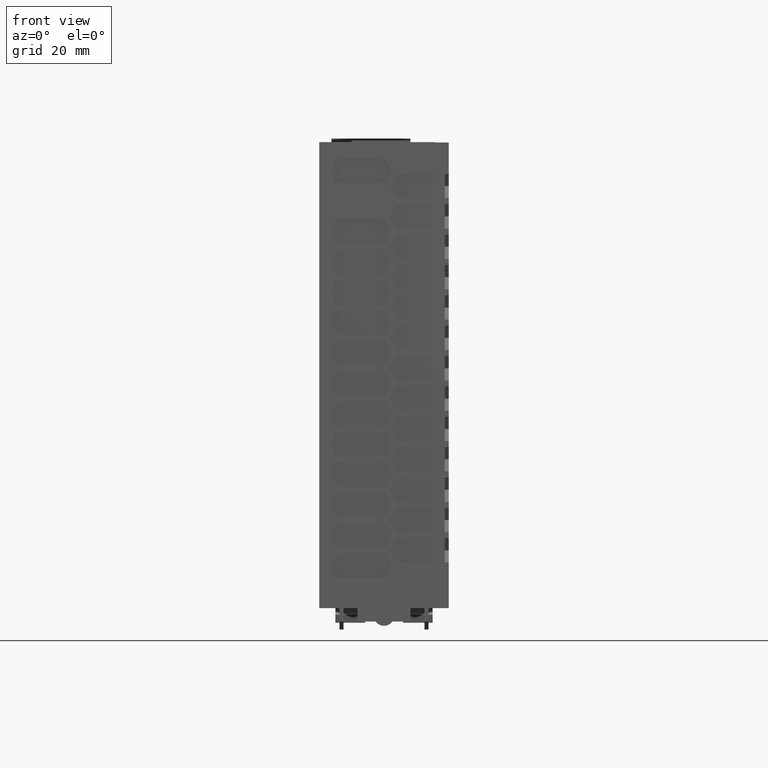
[diagram: clean part render]
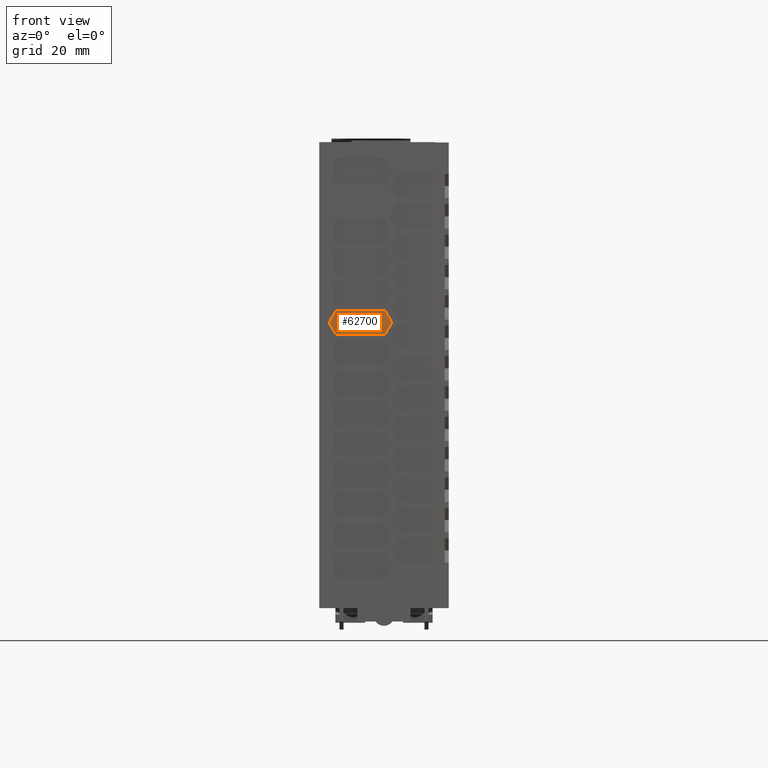
[diagram: same view with one face highlighted and labeled with its STEP entity id]
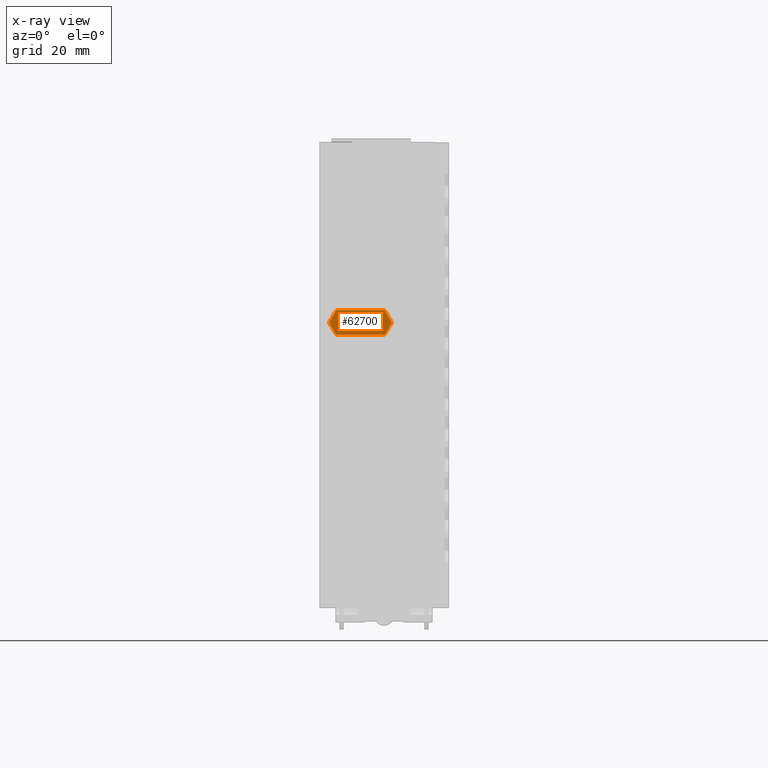
[diagram: x-ray of the same camera — body ghosted, the highlighted face saturated]
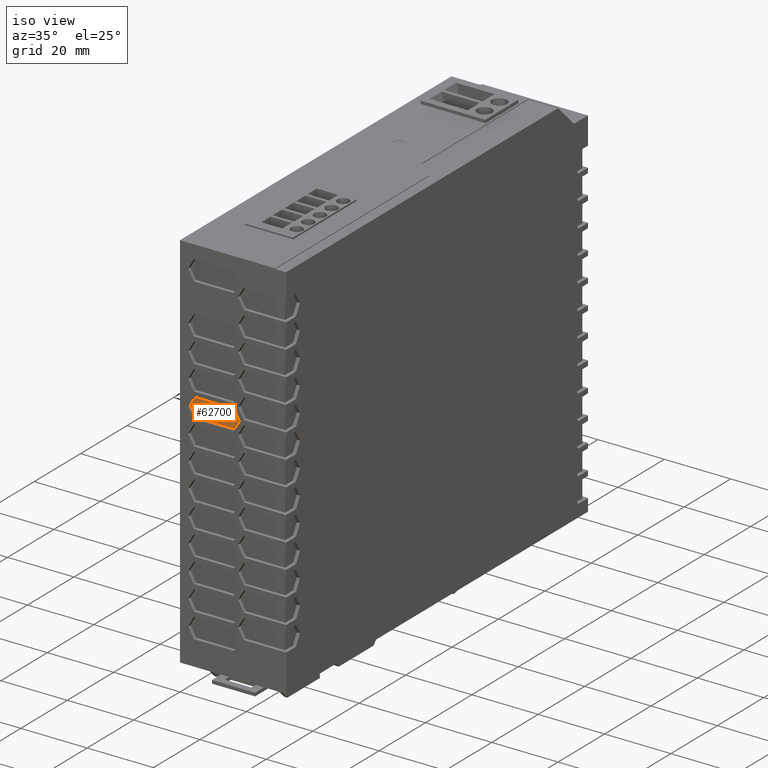
[diagram: same view with one face highlighted and labeled with its STEP entity id]
A machine part, front view. The second image highlights one B-rep face of the part: STEP entity #62700.
The next image is the same camera in x-ray: the body ghosted, the highlighted face saturated — about 0% of this face is hidden behind the body in this view.
A second angle (iso view) of the same face is appended — the face is thin or edge-on in the first view.
In plain terms, the highlighted planar face has unit normal (0, -1, 0).
Its self-contained STEP definition (entity closure, byte-faithful):
#56090=CARTESIAN_POINT('',(8.90877132402716,-64.,-54.8276047807973));
#56100=DIRECTION('',(0.,-1.,0.));
#56110=DIRECTION('',(1.,0.,0.));
#56120=AXIS2_PLACEMENT_3D('',#56090,#56100,#56110);
#56130=PLANE('',#56120);
#62200=CARTESIAN_POINT('',(27.8523494719689,-64.,1.));
#62210=DIRECTION('',(-0.500000000000017,0.,-0.866025403784429));
#62220=VECTOR('',#62210,1.);
#62230=LINE('',#62200,#62220);
#62240=CARTESIAN_POINT('',(4.16505080756896,-64.,-40.0276047807973));
#62250=VERTEX_POINT('',#62240);
#62260=CARTESIAN_POINT('',(2.43300000000001,-64.,-43.0276047807973));
#62270=VERTEX_POINT('',#62260);
#62280=EDGE_CURVE('',#62250,#62270,#62230,.T.);
#62290=ORIENTED_EDGE('',*,*,#62280,.T.);
#62300=CARTESIAN_POINT('',(32.,-64.,-40.0276047807973));
#62310=DIRECTION('',(-1.,0.,0.));
#62320=VECTOR('',#62310,1.);
#62330=LINE('',#62300,#62320);
#62340=CARTESIAN_POINT('',(16.20094919243,-64.,-40.0276047807973));
#62350=VERTEX_POINT('',#62340);
#62360=EDGE_CURVE('',#62350,#62250,#62330,.T.);
#62370=ORIENTED_EDGE('',*,*,#62360,.T.);
#62380=CARTESIAN_POINT('',(-7.48634947196998,-64.,1.));
#62390=DIRECTION('',(-0.500000000000017,0.,0.866025403784429));
#62400=VECTOR('',#62390,1.);
#62410=LINE('',#62380,#62400);
#62420=CARTESIAN_POINT('',(17.932999999999,-64.,-43.0276047807973));
#62430=VERTEX_POINT('',#62420);
#62440=EDGE_CURVE('',#62430,#62350,#62410,.T.);
#62450=ORIENTED_EDGE('',*,*,#62440,.T.);
#62460=CARTESIAN_POINT('',(43.3523494719679,-64.,1.));
#62470=DIRECTION('',(0.500000000000017,0.,0.866025403784429));
#62480=VECTOR('',#62470,1.);
#62490=LINE('',#62460,#62480);
#62500=CARTESIAN_POINT('',(16.20094919243,-64.,-46.0276047807973));
#62510=VERTEX_POINT('',#62500);
#62520=EDGE_CURVE('',#62510,#62430,#62490,.T.);
#62530=ORIENTED_EDGE('',*,*,#62520,.T.);
#62540=CARTESIAN_POINT('',(32.,-64.,-46.0276047807973));
#62550=DIRECTION('',(1.,0.,0.));
#62560=VECTOR('',#62550,1.);
#62570=LINE('',#62540,#62560);
#62580=CARTESIAN_POINT('',(4.16505080756895,-64.,-46.0276047807973));
#62590=VERTEX_POINT('',#62580);
#62600=EDGE_CURVE('',#62590,#62510,#62570,.T.);
#62610=ORIENTED_EDGE('',*,*,#62600,.T.);
#62620=CARTESIAN_POINT('',(-22.9863494719689,-64.,1.));
#62630=DIRECTION('',(0.500000000000017,-0.,-0.866025403784429));
#62640=VECTOR('',#62630,1.);
#62650=LINE('',#62620,#62640);
#62660=EDGE_CURVE('',#62270,#62590,#62650,.T.);
#62670=ORIENTED_EDGE('',*,*,#62660,.T.);
#62680=EDGE_LOOP('',(#62670,#62610,#62530,#62450,#62370,#62290));
#62690=FACE_OUTER_BOUND('',#62680,.T.);
#62700=ADVANCED_FACE('',(#62690),#56130,.T.);